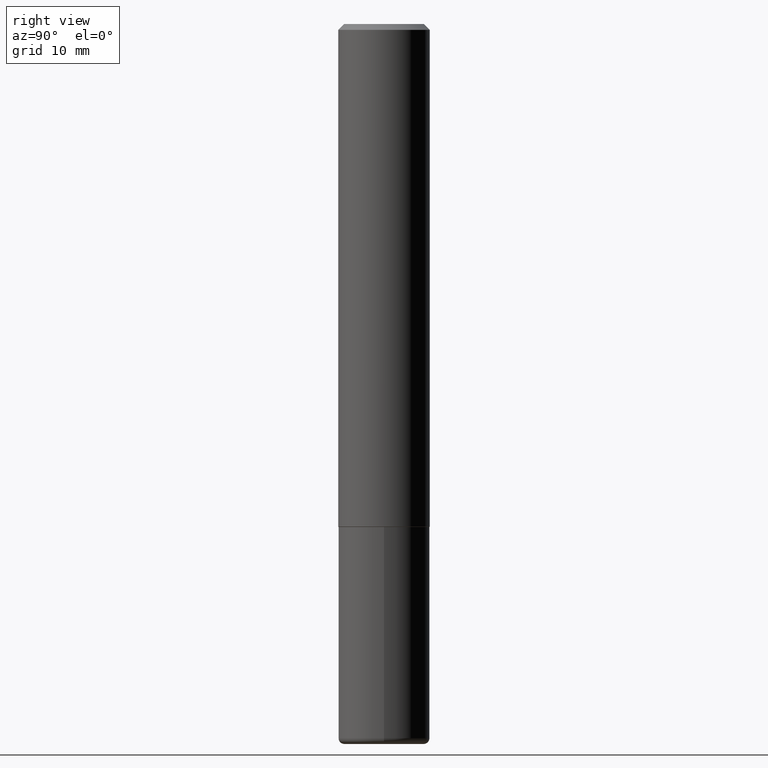
[diagram: clean part render]
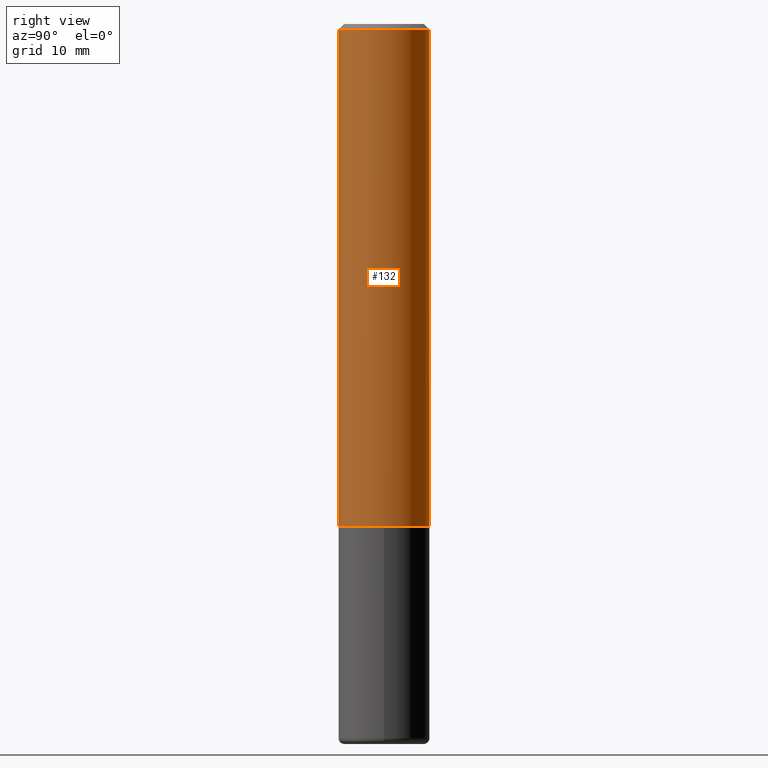
[diagram: same view with one face highlighted and labeled with its STEP entity id]
A machine part, right view. The second image highlights one B-rep face of the part: STEP entity #132.
In plain terms, the highlighted cylindrical surface (partial cylindrical patch) has radius 4.0005 mm, axis along (-0, 0, 1).
Its self-contained STEP definition (entity closure, byte-faithful):
#9 = CARTESIAN_POINT ( 'NONE',  ( -1.099816621735546065E-15, -0.1575000000000062461, -1.731299999999999617 ) ) ;
#10 = AXIS2_PLACEMENT_3D ( 'NONE', #13, #330, #152 ) ;
#13 = CARTESIAN_POINT ( 'NONE',  ( 0.000000000000000000, 0.000000000000000000, 0.000000000000000000 ) ) ;
#34 = DIRECTION ( 'NONE',  ( -6.982962677686265922E-15, -1.000000000000000000, 3.469013325287948955E-15 ) ) ;
#38 = AXIS2_PLACEMENT_3D ( 'NONE', #68, #98, #34 ) ;
#42 = EDGE_LOOP ( 'NONE', ( #133, #312, #385, #95 ) ) ;
#45 = LINE ( 'NONE', #82, #193 ) ;
#55 = CARTESIAN_POINT ( 'NONE',  ( 1.119104808822158195E-15, 0.1575000000000000844, -5.500607733430839175E-16 ) ) ;
#68 = CARTESIAN_POINT ( 'NONE',  ( 4.232669851550288088E-29, -6.046477567548449110E-15, -1.731300000000000283 ) ) ;
#72 = CARTESIAN_POINT ( 'NONE',  ( 1.099816621735587480E-15, 0.1574999999999999456, -0.02000000000000058328 ) ) ;
#82 = CARTESIAN_POINT ( 'NONE',  ( -1.099816621735587480E-15, -0.1575000000000000844, 5.500607733430839175E-16 ) ) ;
#95 = ORIENTED_EDGE ( 'NONE', *, *, #129, .F. ) ;
#98 = DIRECTION ( 'NONE',  ( -2.444792844423431679E-29, 3.492449354559260946E-15, 1.000000000000000000 ) ) ;
#99 = VERTEX_POINT ( 'NONE', #328 ) ;
#129 = EDGE_CURVE ( 'NONE', #173, #99, #45, .T. ) ;
#132 = ADVANCED_FACE ( 'NONE', ( #180 ), #177, .T. ) ;
#133 = ORIENTED_EDGE ( 'NONE', *, *, #393, .T. ) ;
#152 = DIRECTION ( 'NONE',  ( -6.982962677686265922E-15, -1.000000000000000000, 3.492449354559260946E-15 ) ) ;
#165 = VERTEX_POINT ( 'NONE', #72 ) ;
#173 = VERTEX_POINT ( 'NONE', #9 ) ;
#177 = CYLINDRICAL_SURFACE ( 'NONE', #10, 0.1575000000000000844 ) ;
#180 = FACE_OUTER_BOUND ( 'NONE', #42, .T. ) ;
#193 = VECTOR ( 'NONE', #366, 39.37007874015748143 ) ;
#220 = CARTESIAN_POINT ( 'NONE',  ( 1.119104808822180086E-15, 0.1574999999999941447, -1.731300000000000727 ) ) ;
#243 = EDGE_CURVE ( 'NONE', #293, #165, #280, .T. ) ;
#280 = LINE ( 'NONE', #55, #304 ) ;
#289 = DIRECTION ( 'NONE',  ( -2.444792844423431679E-29, 3.492449354559260946E-15, 1.000000000000000000 ) ) ;
#293 = VERTEX_POINT ( 'NONE', #220 ) ;
#296 = CIRCLE ( 'NONE', #354, 0.1575000000000000289 ) ;
#304 = VECTOR ( 'NONE', #402, 39.37007874015748143 ) ;
#312 = ORIENTED_EDGE ( 'NONE', *, *, #243, .T. ) ;
#320 = CIRCLE ( 'NONE', #38, 0.1575000000000001954 ) ;
#323 = DIRECTION ( 'NONE',  ( -6.982962677686264344E-15, -1.000000000000000000, 3.496114991891764787E-15 ) ) ;
#328 = CARTESIAN_POINT ( 'NONE',  ( -1.080528434649015779E-15, -0.1575000000000000844, -0.01999999999999948347 ) ) ;
#330 = DIRECTION ( 'NONE',  ( -2.444792844423431679E-29, 3.492449354559260946E-15, 1.000000000000000000 ) ) ;
#348 = CARTESIAN_POINT ( 'NONE',  ( 4.889585688846871450E-31, -6.984898709118533528E-17, -0.02000000000000003511 ) ) ;
#354 = AXIS2_PLACEMENT_3D ( 'NONE', #348, #289, #323 ) ;
#366 = DIRECTION ( 'NONE',  ( -2.444792844423431399E-29, 3.492449354559261341E-15, 1.000000000000000000 ) ) ;
#385 = ORIENTED_EDGE ( 'NONE', *, *, #387, .F. ) ;
#387 = EDGE_CURVE ( 'NONE', #99, #165, #296, .T. ) ;
#393 = EDGE_CURVE ( 'NONE', #173, #293, #320, .T. ) ;
#402 = DIRECTION ( 'NONE',  ( -2.444792844423431399E-29, 3.492449354559261341E-15, 1.000000000000000000 ) ) ;